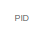
[diagram: root canvas - part 1/7, top left region]
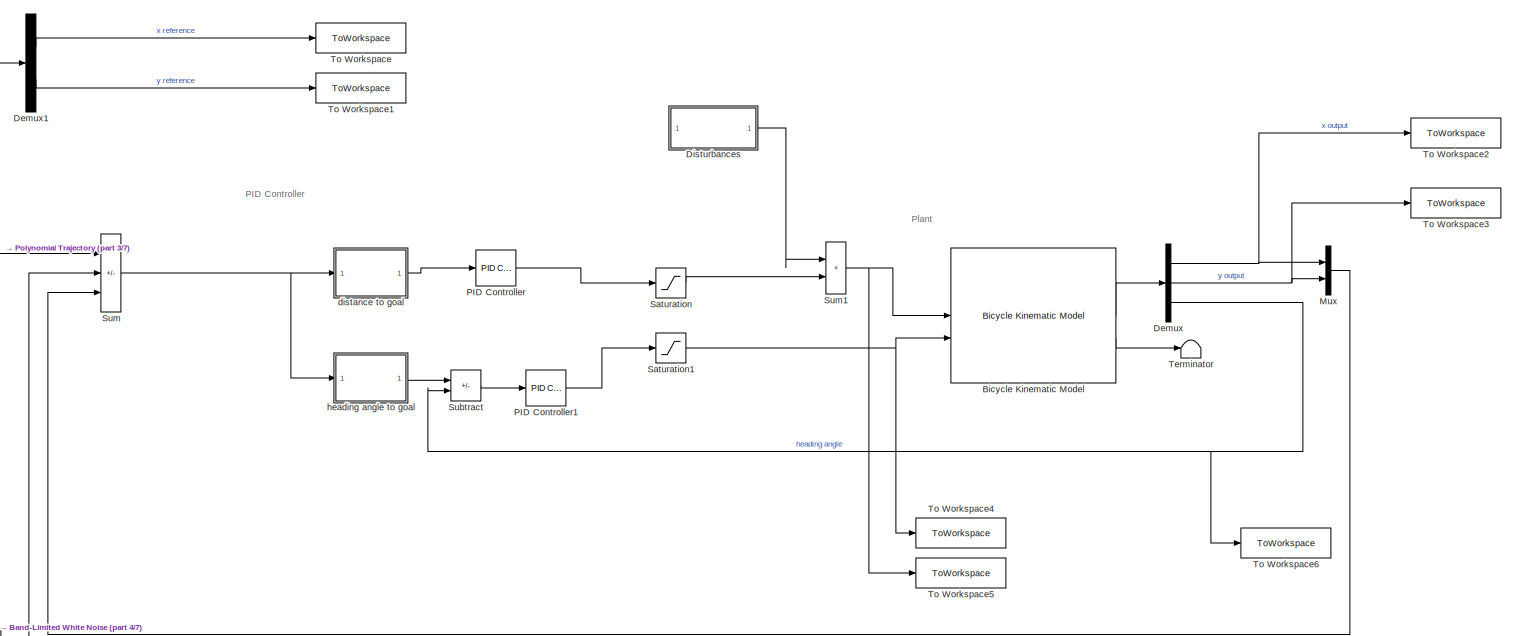
[diagram: root canvas - part 2/7, full width, top band]
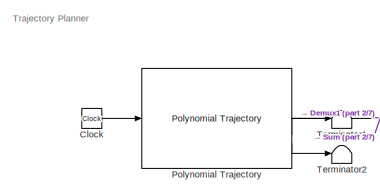
[diagram: root canvas - part 3/7, top left region]
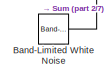
[diagram: root canvas - part 4/7, middle left region]
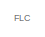
[diagram: root canvas - part 5/7, middle left region]
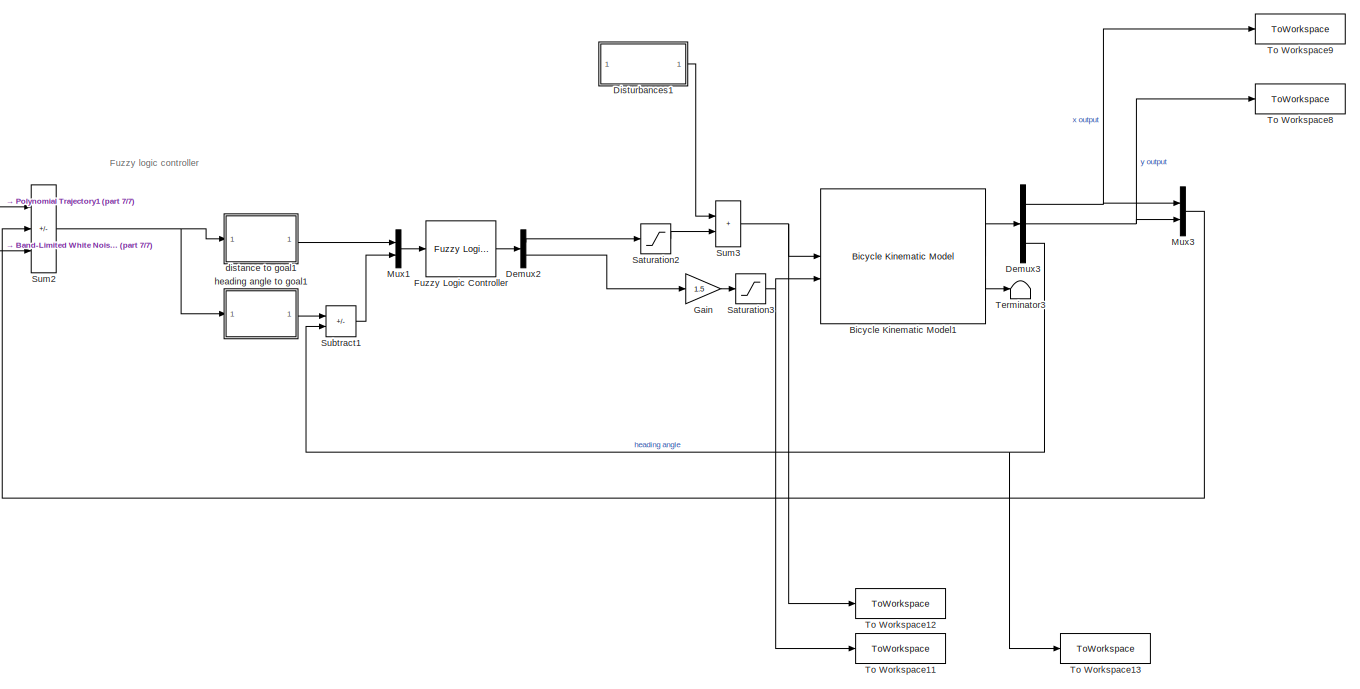
[diagram: root canvas - part 6/7, bottom center region]
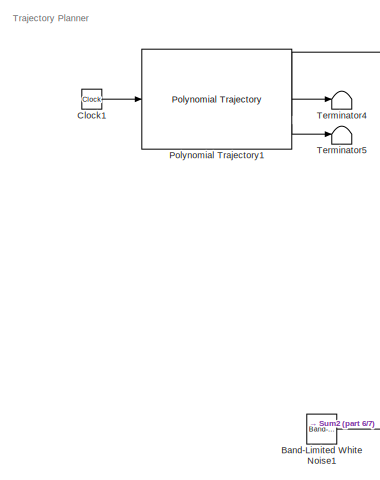
[diagram: root canvas - part 7/7, bottom left region]
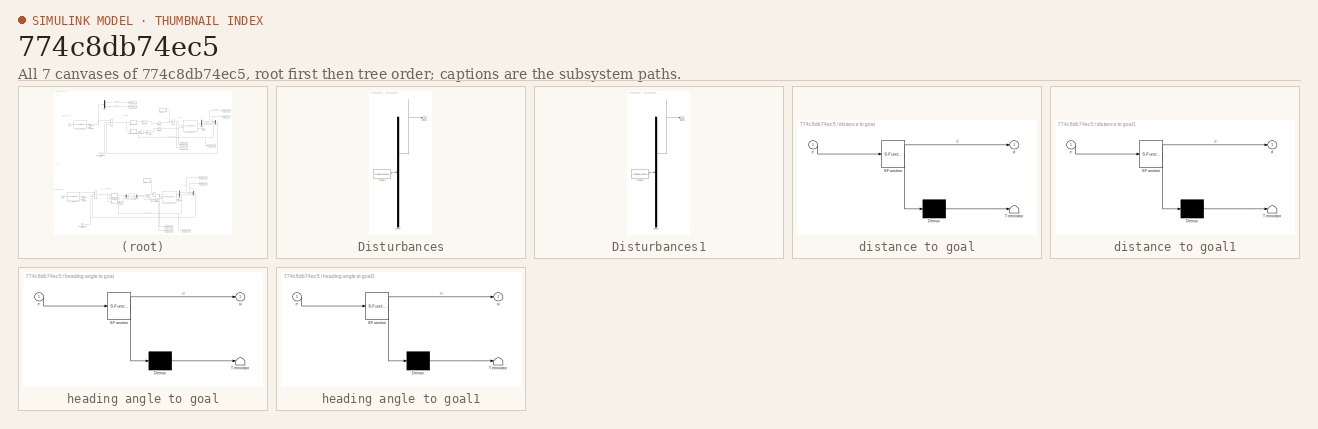
[diagram: thumbnail index - all 7 canvases of the model, root first then tree order]
MODEL slx_774c8db74ec5
KIND model
CONFIG AbsTol = auto
CONFIG EnableMultiTasking = off
CONFIG FixedStep = auto
CONFIG MaxStep = auto
CONFIG MinStep = auto
CONFIG RelTol = 1e-3
CONFIG SampleTimeConstraint = Unconstrained
CONFIG SolverName = VariableStepAuto
CONFIG StartTime = 0.0
CONFIG StopTime = 19
BLOCK [Reference] Band-Limited White Noise  REF=simulink/Sources/Band-Limited
White Noise
  SourceBlock = simulink/Sources/Band-Limited\nWhite Noise
  SourceType = Band-Limited White Noise.
BLOCK [Reference] Band-Limited White Noise1  REF=simulink/Sources/Band-Limited
White Noise
  SourceBlock = simulink/Sources/Band-Limited\nWhite Noise
  SourceType = Band-Limited White Noise.
BLOCK [Reference] Bicycle Kinematic Model  REF=robotmobilelib/Bicycle Kinematic Model
  SourceBlock = robotmobilelib/Bicycle Kinematic Model
  SourceType = Bicycle Kinematic Model
BLOCK [Reference] Bicycle Kinematic Model1  REF=robotmobilelib/Bicycle Kinematic Model
  SourceBlock = robotmobilelib/Bicycle Kinematic Model
  SourceType = Bicycle Kinematic Model
BLOCK [Clock] Clock
  Decimation = 19
BLOCK [Clock] Clock1
  Decimation = 19
BLOCK [Demux] Demux
  Outputs = 3
BLOCK [Demux] Demux1
  Outputs = 2
BLOCK [Demux] Demux2
  Outputs = 2
BLOCK [Demux] Demux3
  Outputs = 3
BLOCK [SubSystem] Disturbances
  ClipboardFcn = sigbuilder_block('clipboard');
  CloseFcn = sigbuilder_block('close');
  ContinueFcn = sigbuilder_block('continue');
  CopyFcn = sigbuilder_block('copy');
  DeleteFcn = sigbuilder_block('delete');
  LoadFcn = sigbuilder_block('load');
  MaskHideContents = on
  ModelCloseFcn = sigbuilder_block('modelClose');
  NameChangeFcn = sigbuilder_block('namechange');
  OpenFcn = sigbuilder_block('open',[434.4 132.6 550.8 400.2 ]);
  PauseFcn = sigbuilder_block('pause');
  PreSaveFcn = sigbuilder_block('preSave');
  StartFcn = sigbuilder_block('start');
  StopFcn = sigbuilder_block('stop');
  Tag = STV Subsys
BLOCK [Demux] Disturbances/Demux
  DisplayOption = none
  Outputs = 1
  Tag = STV Demux
BLOCK [FromWorkspace] Disturbances/FromWs
  Tag = STV FromWs
  VariableName = tuvar
BLOCK [Outport] Disturbances/Signal 1
  Tag = STV Outport
BLOCK [SubSystem] Disturbances1
  ClipboardFcn = sigbuilder_block('clipboard');
  CloseFcn = sigbuilder_block('close');
  ContinueFcn = sigbuilder_block('continue');
  CopyFcn = sigbuilder_block('copy');
  DeleteFcn = sigbuilder_block('delete');
  LoadFcn = sigbuilder_block('load');
  MaskHideContents = on
  ModelCloseFcn = sigbuilder_block('modelClose');
  NameChangeFcn = sigbuilder_block('namechange');
  OpenFcn = sigbuilder_block('open',[437.6 199.2 550.4 400 ]);
  PauseFcn = sigbuilder_block('pause');
  PreSaveFcn = sigbuilder_block('preSave');
  StartFcn = sigbuilder_block('start');
  StopFcn = sigbuilder_block('stop');
  Tag = STV Subsys
BLOCK [Demux] Disturbances1/Demux
  DisplayOption = none
  Outputs = 1
  Tag = STV Demux
BLOCK [FromWorkspace] Disturbances1/FromWs
  Tag = STV FromWs
  VariableName = tuvar
BLOCK [Outport] Disturbances1/Signal 1
  Tag = STV Outport
BLOCK [Reference] Fuzzy Logic Controller  REF=fuzblock/Fuzzy Logic   (lib defined in mdl_858b3b3e7478)
Controller
  SourceBlock = fuzblock/Fuzzy Logic \nController
  SourceType = Fuzzy Inference System
BLOCK [Gain] Gain
  Gain = 1.5
BLOCK [Mux] Mux
  DisplayOption = bar
  Inputs = 2
BLOCK [Mux] Mux1
  DisplayOption = bar
  Inputs = 2
BLOCK [Mux] Mux3
  DisplayOption = bar
  Inputs = 2
BLOCK [Reference] PID Controller  REF=slpidlib/PID Controller
  SourceBlock = slpidlib/PID Controller
  SourceType = PID 1dof
BLOCK [Reference] PID Controller1  REF=slpidlib/PID Controller
  SourceBlock = slpidlib/PID Controller
  SourceType = PID 1dof
BLOCK [Reference] Polynomial Trajectory  REF=robotcorelib/Polynomial Trajectory
  SourceBlock = robotcorelib/Polynomial Trajectory
  SourceType = robotics.slcore.internal.block.PolyTrajSys
BLOCK [Reference] Polynomial Trajectory1  REF=robotcorelib/Polynomial Trajectory
  SourceBlock = robotcorelib/Polynomial Trajectory
  SourceType = robotics.slcore.internal.block.PolyTrajSys
BLOCK [Saturate] Saturation
  LowerLimit = 0
  UpperLimit = 3
BLOCK [Saturate] Saturation1
  LowerLimit = -pi/4
  UpperLimit = pi/4
BLOCK [Saturate] Saturation2
  LowerLimit = 0
  UpperLimit = 3
BLOCK [Saturate] Saturation3
  LinearizeAsGain = off
  LowerLimit = -pi/4
  UpperLimit = pi/4
BLOCK [Sum] Subtract
  IconShape = rectangular
  Inputs = +-
BLOCK [Sum] Subtract1
  IconShape = rectangular
  Inputs = +-
BLOCK [Sum] Sum
  IconShape = rectangular
  InputSameDT = on
  Inputs = |+--
BLOCK [Sum] Sum1
  IconShape = rectangular
  Inputs = |++
BLOCK [Sum] Sum2
  IconShape = rectangular
  Inputs = |+--
BLOCK [Sum] Sum3
  IconShape = rectangular
  Inputs = |++
BLOCK [Terminator] Terminator
BLOCK [Terminator] Terminator1
BLOCK [Terminator] Terminator2
BLOCK [Terminator] Terminator3
BLOCK [Terminator] Terminator4
BLOCK [Terminator] Terminator5
BLOCK [ToWorkspace] To Workspace
  FixptAsFi = on
  MaxDataPoints = inf
  SampleTime = -1
  Save2DSignal = 2-D array (concatenate along first dimension)
  VariableName = Xref
BLOCK [ToWorkspace] To Workspace1
  FixptAsFi = on
  MaxDataPoints = inf
  SampleTime = -1
  Save2DSignal = 2-D array (concatenate along first dimension)
  VariableName = Yref
BLOCK [ToWorkspace] To Workspace11
  FixptAsFi = on
  MaxDataPoints = inf
  SampleTime = -1
  Save2DSignal = 2-D array (concatenate along first dimension)
  VariableName = SteeringAngle_FLC
BLOCK [ToWorkspace] To Workspace12
  FixptAsFi = on
  MaxDataPoints = inf
  SampleTime = -1
  Save2DSignal = 2-D array (concatenate along first dimension)
  VariableName = VehicleSpeed_FLC
BLOCK [ToWorkspace] To Workspace13
  FixptAsFi = on
  MaxDataPoints = inf
  SampleTime = -1
  Save2DSignal = 2-D array (concatenate along first dimension)
  VariableName = HeadingAngleOut_FLC
BLOCK [ToWorkspace] To Workspace2
  FixptAsFi = on
  MaxDataPoints = inf
  SampleTime = -1
  Save2DSignal = 2-D array (concatenate along first dimension)
  VariableName = Xoutput_PID
BLOCK [ToWorkspace] To Workspace3
  FixptAsFi = on
  MaxDataPoints = inf
  SampleTime = -1
  Save2DSignal = 2-D array (concatenate along first dimension)
  VariableName = Youtput_PID
BLOCK [ToWorkspace] To Workspace4
  FixptAsFi = on
  MaxDataPoints = inf
  SampleTime = -1
  Save2DSignal = 2-D array (concatenate along first dimension)
  VariableName = SteeringAngle_PID
BLOCK [ToWorkspace] To Workspace5
  FixptAsFi = on
  MaxDataPoints = inf
  SampleTime = -1
  Save2DSignal = 2-D array (concatenate along first dimension)
  VariableName = VehicleSpeed_PID
BLOCK [ToWorkspace] To Workspace6
  FixptAsFi = on
  MaxDataPoints = inf
  SampleTime = -1
  Save2DSignal = 2-D array (concatenate along first dimension)
  VariableName = HeadingAngleOut_PID
BLOCK [ToWorkspace] To Workspace8
  FixptAsFi = on
  MaxDataPoints = inf
  SampleTime = -1
  Save2DSignal = 2-D array (concatenate along first dimension)
  VariableName = Youtput_FLC
BLOCK [ToWorkspace] To Workspace9
  FixptAsFi = on
  MaxDataPoints = inf
  SampleTime = -1
  Save2DSignal = 2-D array (concatenate along first dimension)
  VariableName = Xoutput_FLC
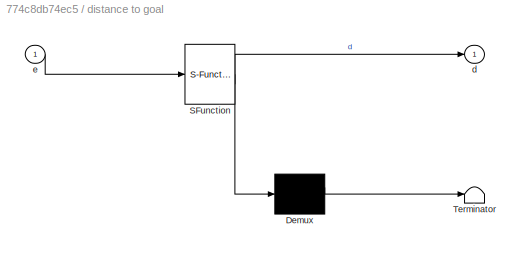
BLOCK [SubSystem] distance to goal
  ErrorFcn = Stateflow.Translate.translate
  PermitHierarchicalResolution = ExplicitOnly
  SFBlockType = MATLAB Function
  TreatAsAtomicUnit = on
BLOCK [Demux] distance to goal/ Demux 
  Outputs = 1
BLOCK [S-Function] distance to goal/ SFunction 
  EnableBusSupport = on
  FunctionName = sf_sfun
  PortCounts = [1 2]
  SFcnIsStateOwnerBlock = off
  SFunctionDeploymentMode = off
  Tag = Stateflow S-Function 2
BLOCK [Terminator] distance to goal/ Terminator 
BLOCK [Outport] distance to goal/d
BLOCK [Inport] distance to goal/e
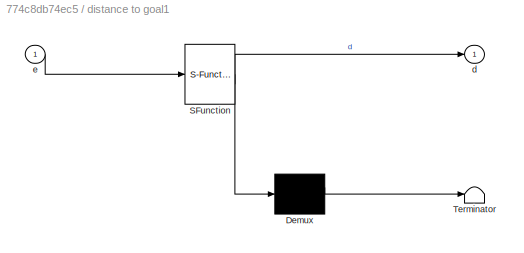
BLOCK [SubSystem] distance to goal1
  ErrorFcn = Stateflow.Translate.translate
  PermitHierarchicalResolution = ExplicitOnly
  SFBlockType = MATLAB Function
  TreatAsAtomicUnit = on
BLOCK [Demux] distance to goal1/ Demux 
  Outputs = 1
BLOCK [S-Function] distance to goal1/ SFunction 
  EnableBusSupport = on
  FunctionName = sf_sfun
  PortCounts = [1 2]
  SFcnIsStateOwnerBlock = off
  SFunctionDeploymentMode = off
  Tag = Stateflow S-Function 3
BLOCK [Terminator] distance to goal1/ Terminator 
BLOCK [Outport] distance to goal1/d
BLOCK [Inport] distance to goal1/e
BLOCK [SubSystem] heading angle to goal
  ErrorFcn = Stateflow.Translate.translate
  PermitHierarchicalResolution = ExplicitOnly
  SFBlockType = MATLAB Function
  TreatAsAtomicUnit = on
BLOCK [Demux] heading angle to goal/ Demux 
  Outputs = 1
BLOCK [S-Function] heading angle to goal/ SFunction 
  EnableBusSupport = on
  FunctionName = sf_sfun
  PortCounts = [1 2]
  SFcnIsStateOwnerBlock = off
  SFunctionDeploymentMode = off
  Tag = Stateflow S-Function 1
BLOCK [Terminator] heading angle to goal/ Terminator 
BLOCK [Inport] heading angle to goal/e
BLOCK [Outport] heading angle to goal/si
BLOCK [SubSystem] heading angle to goal1
  ErrorFcn = Stateflow.Translate.translate
  PermitHierarchicalResolution = ExplicitOnly
  SFBlockType = MATLAB Function
  TreatAsAtomicUnit = on
BLOCK [Demux] heading angle to goal1/ Demux 
  Outputs = 1
BLOCK [S-Function] heading angle to goal1/ SFunction 
  EnableBusSupport = on
  FunctionName = sf_sfun
  PortCounts = [1 2]
  SFcnIsStateOwnerBlock = off
  SFunctionDeploymentMode = off
  Tag = Stateflow S-Function 4
BLOCK [Terminator] heading angle to goal1/ Terminator 
BLOCK [Inport] heading angle to goal1/e
BLOCK [Outport] heading angle to goal1/si
ANNOTATION (root): FLC
ANNOTATION (root): Fuzzy logic controller
ANNOTATION (root): PID
ANNOTATION (root): PID Controller
ANNOTATION (root): Plant
ANNOTATION (root): Trajectory Planner
LINE Band-Limited White Noise1:1 -> Sum2:3
LINE Band-Limited White Noise:1 -> Sum:2
LINE Bicycle Kinematic Model1:1 -> Demux3:1
LINE Bicycle Kinematic Model1:2 -> Terminator3:1
LINE Bicycle Kinematic Model:1 -> Demux:1
LINE Bicycle Kinematic Model:2 -> Terminator:1
LINE Clock1:1 -> Polynomial Trajectory1:1
LINE Clock:1 -> Polynomial Trajectory:1
LINE Demux1:1 -> To Workspace:1
LINE Demux1:2 -> To Workspace1:1
LINE Demux2:1 -> Saturation2:1
LINE Demux2:2 -> Gain:1
NET Demux3:1 -> Mux3:1, To Workspace9:1
NET Demux3:2 -> Mux3:2, To Workspace8:1
NET Demux3:3 -> Subtract1:2, To Workspace13:1
NET Demux:1 -> Mux:1, To Workspace2:1
NET Demux:2 -> Mux:2, To Workspace3:1
NET Demux:3 -> Subtract:2, To Workspace6:1
LINE Disturbances1:1 -> Sum3:1
LINE Disturbances:1 -> Sum1:1
LINE Fuzzy Logic Controller:1 -> Demux2:1
LINE Gain:1 -> Saturation3:1
LINE Mux1:1 -> Fuzzy Logic Controller:1
LINE Mux3:1 -> Sum2:2
LINE Mux:1 -> Sum:3
LINE PID Controller1:1 -> Saturation1:1
LINE PID Controller:1 -> Saturation:1
LINE Polynomial Trajectory1:1 -> Sum2:1
LINE Polynomial Trajectory1:2 -> Terminator4:1
LINE Polynomial Trajectory1:3 -> Terminator5:1
NET Polynomial Trajectory:1 -> Demux1:1, Sum:1
LINE Polynomial Trajectory:2 -> Terminator1:1
LINE Polynomial Trajectory:3 -> Terminator2:1
NET Saturation1:1 -> Bicycle Kinematic Model:2, To Workspace4:1
LINE Saturation2:1 -> Sum3:2
NET Saturation3:1 -> Bicycle Kinematic Model1:2, To Workspace11:1
LINE Saturation:1 -> Sum1:2
LINE Subtract1:1 -> Mux1:2
LINE Subtract:1 -> PID Controller1:1
NET Sum1:1 -> Bicycle Kinematic Model:1, To Workspace5:1
NET Sum2:1 -> distance to goal1:1, heading angle to goal1:1
NET Sum3:1 -> Bicycle Kinematic Model1:1, To Workspace12:1
NET Sum:1 -> distance to goal:1, heading angle to goal:1
LINE distance to goal1:1 -> Mux1:1
LINE distance to goal:1 -> PID Controller:1
LINE heading angle to goal1:1 -> Subtract1:1
LINE heading angle to goal:1 -> Subtract:1
note: NET lines group one-source signal fan-out (src -> all destinations, sorted); 1:1 wires keep LINE
CHART distance to goal states=1 transitions=1
  STATE_LABEL 'eML_blk_kernel()'
  STATE_LABEL 'SCRIPT:\nfunction d = fcn(e)\n\ne1 =e(1);\ne2 =e(2);\nd = sqrt(e1^2+e2^2);\n'
CHART distance to goal1 states=1 transitions=1
  STATE_LABEL 'eML_blk_kernel()'
  STATE_LABEL 'SCRIPT:\nfunction d = fcn(e)\n\ne1 =e(1);\ne2 =e(2);\nd = sqrt(e1^2+e2^2);\n'
CHART heading angle to goal1 states=1 transitions=1
  STATE_LABEL 'eML_blk_kernel()'
  STATE_LABEL 'SCRIPT:\nfunction si = fcn(e)\n\ne1 =e(1);\ne2 =e(2);\nsi = atan2(e2,e1);\n'
CHART heading angle to goal states=1 transitions=1
  STATE_LABEL 'eML_blk_kernel()'
  STATE_LABEL 'SCRIPT:\nfunction si = fcn(e)\n\ne1 =e(1);\ne2 =e(2);\nsi = atan2(e2,e1);\n'
CHART  states=0 transitions=0
CHART  states=0 transitions=0
CHART  states=0 transitions=0
CHART  states=0 transitions=0
